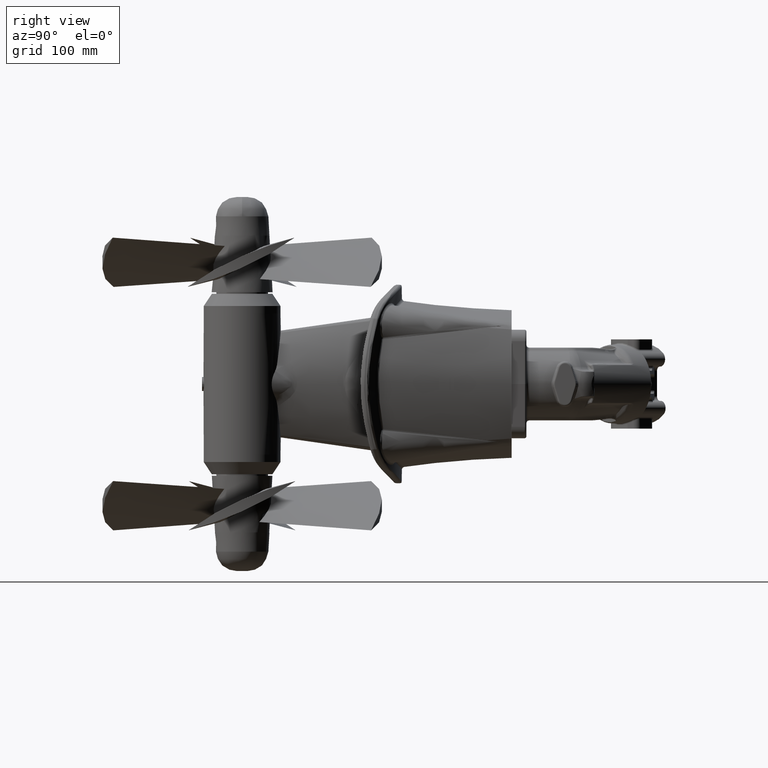
[diagram: clean part render]
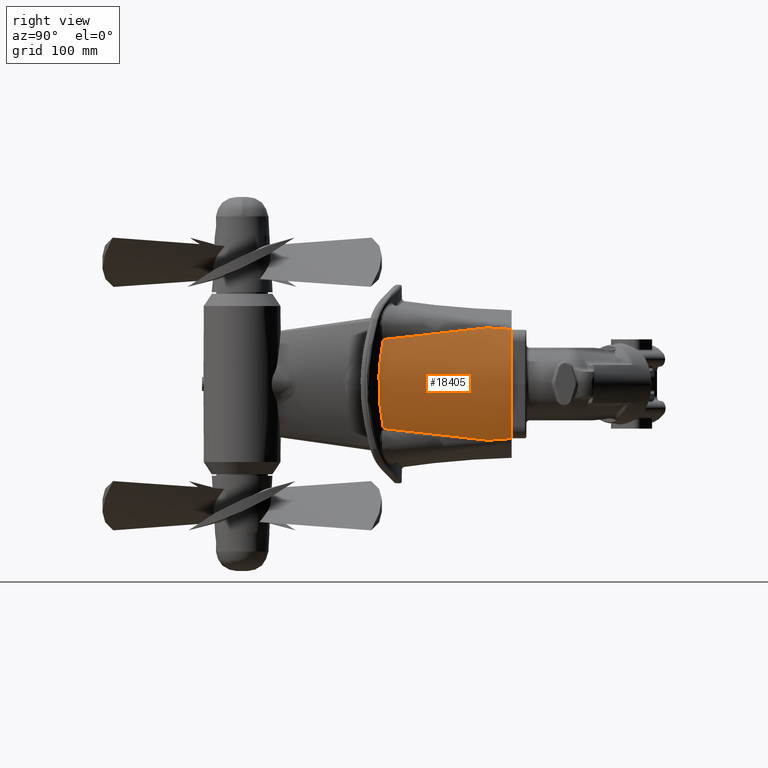
[diagram: same view with one face highlighted and labeled with its STEP entity id]
A machine part, right view. The second image highlights one B-rep face of the part: STEP entity #18405.
In plain terms, the highlighted conical surface has half-angle 5 deg.
Its self-contained STEP definition (entity closure, byte-faithful):
#1833=CONICAL_SURFACE('',#19953,175.,5.);
#2156=B_SPLINE_CURVE_WITH_KNOTS('',3,(#30007,#30008,#30009,#30010,#30011,
#30012,#30013,#30014),.UNSPECIFIED.,.F.,.F.,(4,1,1,1,1,4),(-14.3111656402019,
-6.13335670294366,-4.0889044686291,-2.04445223431455,-1.02222611715728,
0.),.UNSPECIFIED.);
#2157=B_SPLINE_CURVE_WITH_KNOTS('',3,(#30016,#30017,#30018,#30019,#30020,
#30021,#30022,#30023,#30024,#30025),.UNSPECIFIED.,.F.,.F.,(4,1,1,1,1,1,
1,4),(-21.4773665208314,-19.7055200818978,-17.9336736429641,-16.1618272040304,
-14.3899807650967,-12.6181343261631,-10.8462878872294,-9.07444144829569),
 .UNSPECIFIED.);
#2158=B_SPLINE_CURVE_WITH_KNOTS('',3,(#30027,#30028,#30029,#30030,#30031,
#30032,#30033,#30034),.UNSPECIFIED.,.F.,.F.,(4,1,1,1,1,4),(-15.422918744663,
-14.4006926275058,-13.3784665103485,-11.334014276034,-7.24510980740494,
-1.11175310446138),.UNSPECIFIED.);
#2159=B_SPLINE_CURVE_WITH_KNOTS('',3,(#30036,#30037,#30038,#30039),
 .UNSPECIFIED.,.F.,.F.,(4,4),(2.00902162050308,5.10415988422087),
 .UNSPECIFIED.);
#2160=B_SPLINE_CURVE_WITH_KNOTS('',3,(#30042,#30043,#30044,#30045),
 .UNSPECIFIED.,.F.,.F.,(4,4),(-5.10415988422082,-2.00902162050311),
 .UNSPECIFIED.);
#3824=FACE_OUTER_BOUND('',#5313,.T.);
#5313=EDGE_LOOP('',(#12833,#12834,#12835,#12836,#12837,#12838));
#6487=CIRCLE('',#19954,175.);
#7768=VERTEX_POINT('',#30005);
#7769=VERTEX_POINT('',#30006);
#7770=VERTEX_POINT('',#30015);
#7771=VERTEX_POINT('',#30026);
#7772=VERTEX_POINT('',#30035);
#7773=VERTEX_POINT('',#30040);
#9563=EDGE_CURVE('',#7768,#7769,#2156,.T.);
#9564=EDGE_CURVE('',#7770,#7768,#2157,.T.);
#9565=EDGE_CURVE('',#7771,#7770,#2158,.T.);
#9566=EDGE_CURVE('',#7772,#7771,#2159,.T.);
#9567=EDGE_CURVE('',#7773,#7772,#6487,.T.);
#9568=EDGE_CURVE('',#7769,#7773,#2160,.T.);
#12833=ORIENTED_EDGE('',*,*,#9563,.F.);
#12834=ORIENTED_EDGE('',*,*,#9564,.F.);
#12835=ORIENTED_EDGE('',*,*,#9565,.F.);
#12836=ORIENTED_EDGE('',*,*,#9566,.F.);
#12837=ORIENTED_EDGE('',*,*,#9567,.F.);
#12838=ORIENTED_EDGE('',*,*,#9568,.F.);
#18405=ADVANCED_FACE('',(#3824),#1833,.T.);
#19953=AXIS2_PLACEMENT_3D('',#30004,#22705,#22706);
#19954=AXIS2_PLACEMENT_3D('',#30041,#22707,#22708);
#22705=DIRECTION('center_axis',(-5.02815290480203E-16,-1.,-4.8305084843109E-16));
#22706=DIRECTION('ref_axis',(0.889393280929907,-6.68023785898981E-16,0.457142857142857));
#22707=DIRECTION('center_axis',(5.02815290480203E-16,1.,4.8305084843109E-16));
#22708=DIRECTION('ref_axis',(0.889393280929907,-6.68023785898981E-16,0.457142857142857));
#30004=CARTESIAN_POINT('Origin',(-71.7472473817586,264.706140227486,-3.22505291323111E-8));
#30005=CARTESIAN_POINT('',(108.589386395997,93.0931297660956,59.8672867956944));
#30006=CARTESIAN_POINT('',(89.0599338206356,233.888032488877,75.6108618044449));
#30007=CARTESIAN_POINT('Ctrl Pts',(108.589386395997,93.0931297660957,59.8672867956943));
#30008=CARTESIAN_POINT('Ctrl Pts',(105.129550449531,119.954163853399,62.830423904495));
#30009=CARTESIAN_POINT('Ctrl Pts',(100.690694002391,153.529470509274,66.4120373550953));
#30010=CARTESIAN_POINT('Ctrl Pts',(95.0906980903185,193.776490429922,70.7377505710682));
#30011=CARTESIAN_POINT('Ctrl Pts',(92.683639910815,210.526442126624,72.6028200603436));
#30012=CARTESIAN_POINT('Ctrl Pts',(90.6731704998113,223.901727990891,74.2151978360546));
#30013=CARTESIAN_POINT('Ctrl Pts',(89.6171466427167,230.56834738326,75.1083592606683));
#30014=CARTESIAN_POINT('Ctrl Pts',(89.0599338206356,233.888032488877,75.6108618044449));
#30015=CARTESIAN_POINT('',(108.589386395997,93.0931297660956,-59.8672868601956));
#30016=CARTESIAN_POINT('Ctrl Pts',(108.589386395997,93.0931297660956,-59.8672868601957));
#30017=CARTESIAN_POINT('Ctrl Pts',(110.480636555753,92.0272113258004,-54.4663110878569));
#30018=CARTESIAN_POINT('Ctrl Pts',(113.783439217732,90.0915377459632,-43.4121805597836));
#30019=CARTESIAN_POINT('Ctrl Pts',(117.172681650822,88.000230233384,-26.2223535763655));
#30020=CARTESIAN_POINT('Ctrl Pts',(118.874777160327,86.9172499632834,-8.72787217180144));
#30021=CARTESIAN_POINT('Ctrl Pts',(118.874699104846,86.9170149905211,8.72883034740272));
#30022=CARTESIAN_POINT('Ctrl Pts',(117.172393112523,88.0005871766895,26.2215899294538));
#30023=CARTESIAN_POINT('Ctrl Pts',(113.783444803668,90.0914746408804,43.4124227926904));
#30024=CARTESIAN_POINT('Ctrl Pts',(110.480636555753,92.0272113258003,54.4663110233556));
#30025=CARTESIAN_POINT('Ctrl Pts',(108.589386395997,93.0931297660956,59.8672867956944));
#30026=CARTESIAN_POINT('',(89.0599338206358,233.888032488875,-75.610861868946));
#30027=CARTESIAN_POINT('Ctrl Pts',(89.0599338206359,233.888032488875,-75.6108618689459));
#30028=CARTESIAN_POINT('Ctrl Pts',(89.617146642717,230.568347383258,-75.1083593251693));
#30029=CARTESIAN_POINT('Ctrl Pts',(90.6728799918759,223.901603323564,-74.2157958614323));
#30030=CARTESIAN_POINT('Ctrl Pts',(92.684293872689,210.526728609849,-72.6014729487778));
#30031=CARTESIAN_POINT('Ctrl Pts',(96.0506330922125,187.075271763174,-69.997667358158));
#30032=CARTESIAN_POINT('Ctrl Pts',(101.578814158216,146.812032133749,-65.712866801375));
#30033=CARTESIAN_POINT('Ctrl Pts',(105.994509436147,113.238905331573,-62.0896396917962));
#30034=CARTESIAN_POINT('Ctrl Pts',(108.589386395997,93.0931297660956,-59.8672868601957));
#30035=CARTESIAN_POINT('',(87.0839223437498,264.706140218447,-73.4687656670667));
#30036=CARTESIAN_POINT('Ctrl Pts',(87.0839223449708,264.706140200368,-73.4687656681944));
#30037=CARTESIAN_POINT('Ctrl Pts',(87.743159707822,254.433539448303,-74.184326593388));
#30038=CARTESIAN_POINT('Ctrl Pts',(88.4018168885987,244.160834909056,-74.898328929211));
#30039=CARTESIAN_POINT('Ctrl Pts',(89.0599338206358,233.888032488875,-75.610861868946));
#30040=CARTESIAN_POINT('',(87.0839223437498,264.706140218446,73.4687656025656));
#30041=CARTESIAN_POINT('Origin',(-71.7472473817586,264.706140227486,-3.22505291323111E-8));
#30042=CARTESIAN_POINT('Ctrl Pts',(89.0599338206357,233.888032488877,75.6108618044447));
#30043=CARTESIAN_POINT('Ctrl Pts',(88.4018168885986,244.160834909058,74.8983288647097));
#30044=CARTESIAN_POINT('Ctrl Pts',(87.743159707822,254.433539448303,74.1843265288869));
#30045=CARTESIAN_POINT('Ctrl Pts',(87.0839223449709,264.706140200367,73.4687656036934));